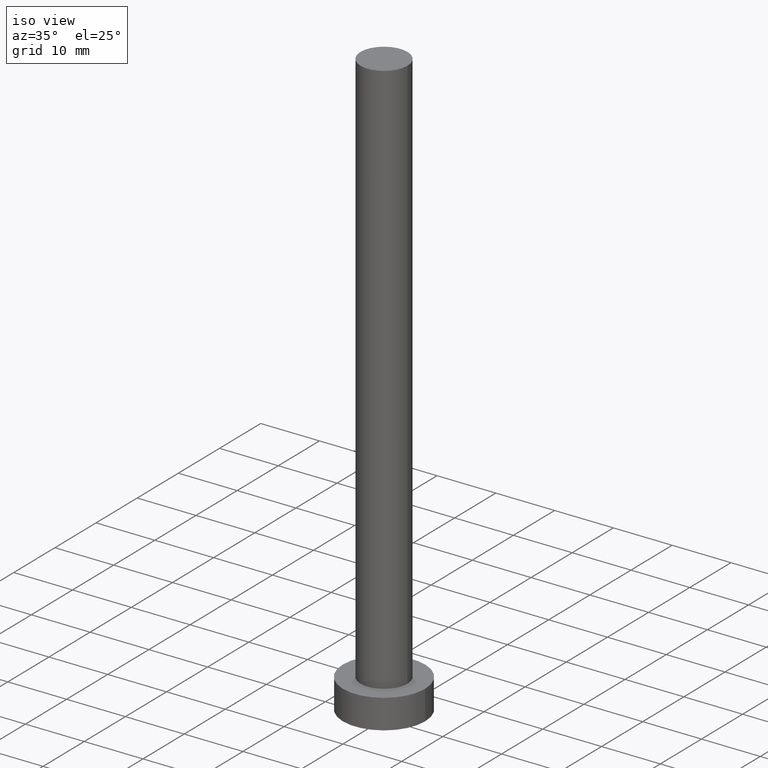
[diagram: clean part render]
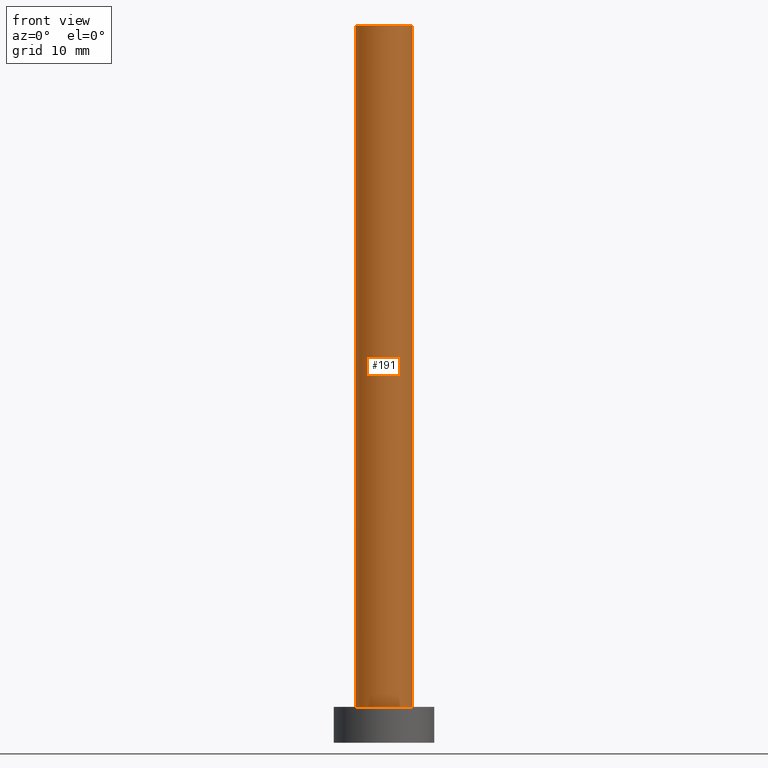
[diagram: tour spotlight — one face highlighted and labeled with its STEP entity id]
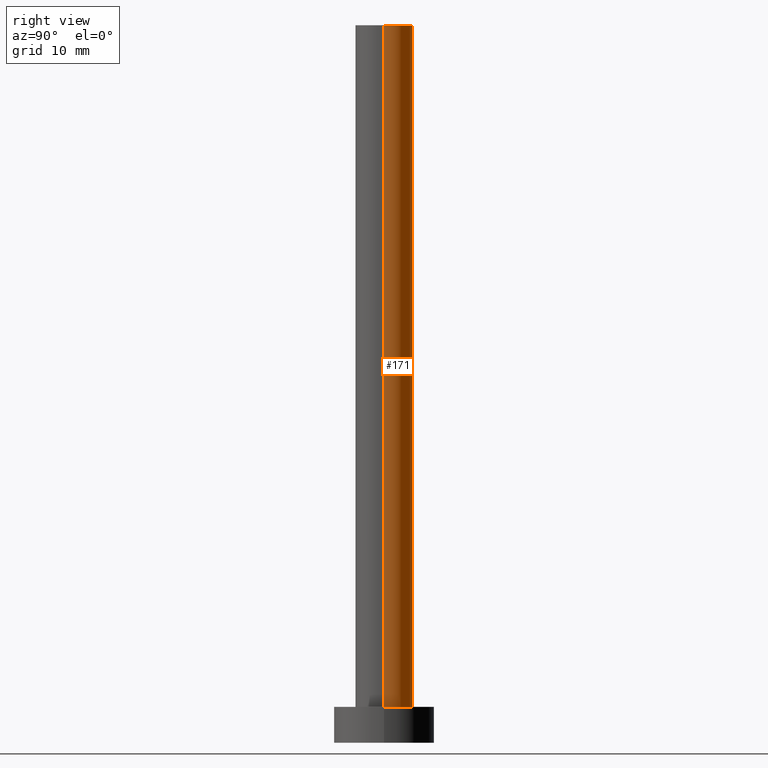
[diagram: tour spotlight — one face highlighted and labeled with its STEP entity id]
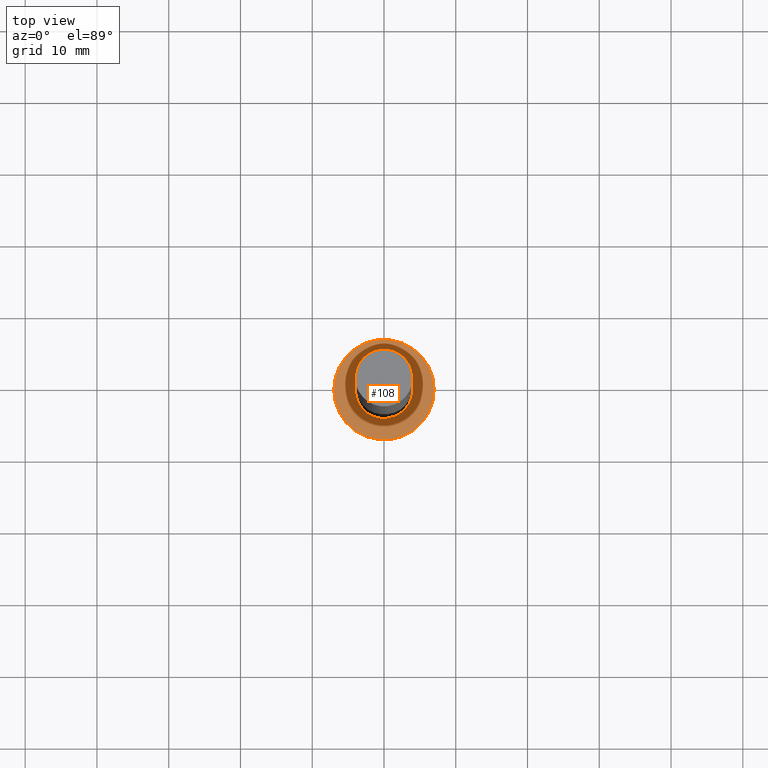
[diagram: tour spotlight — one face highlighted and labeled with its STEP entity id]
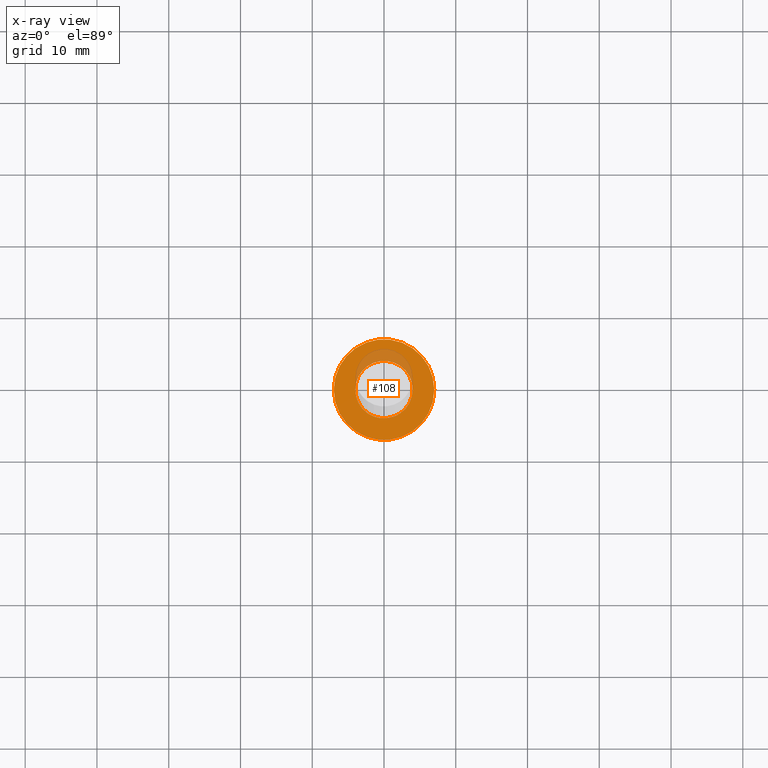
[diagram: x-ray of the same camera — body ghosted, this tour face saturated]
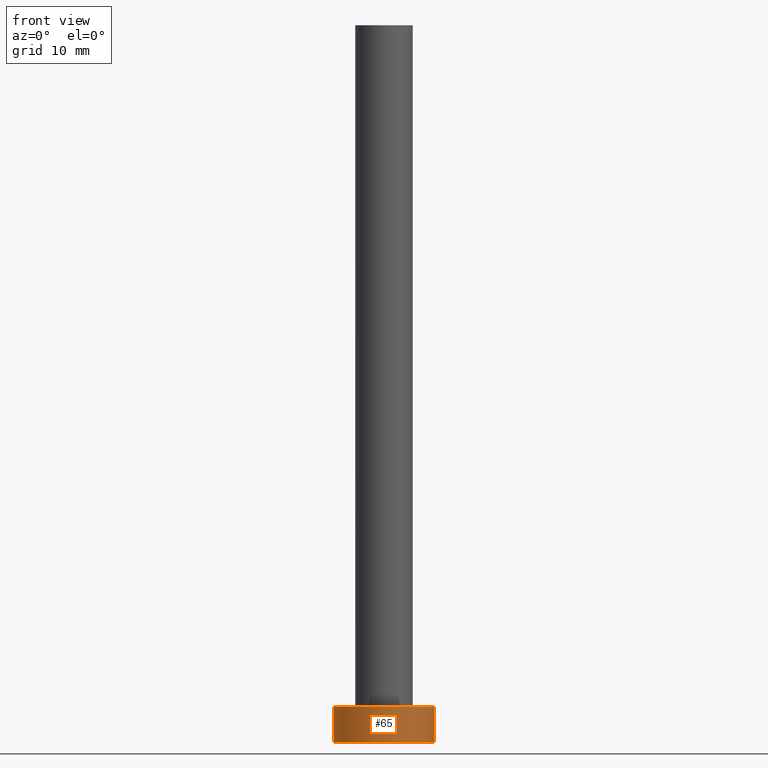
[diagram: tour spotlight — one face highlighted and labeled with its STEP entity id]
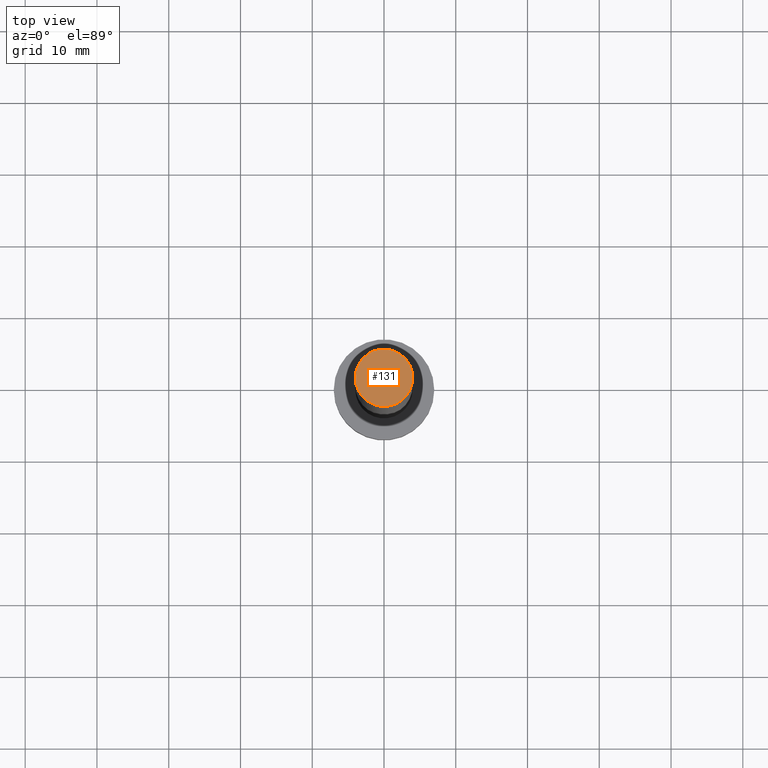
[diagram: tour spotlight — one face highlighted and labeled with its STEP entity id]
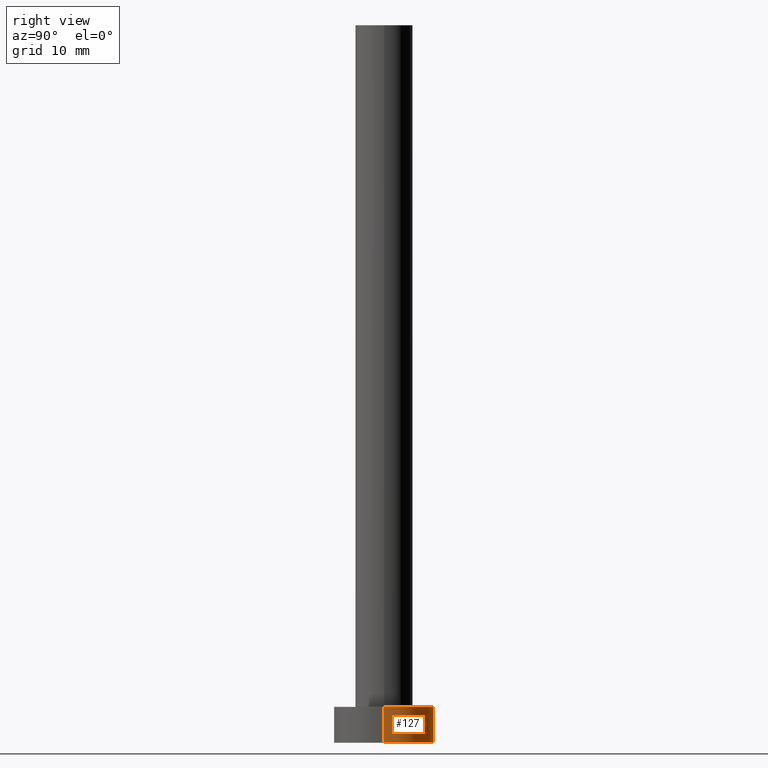
[diagram: tour spotlight — one face highlighted and labeled with its STEP entity id]
A machine part: a face-by-face anatomy tour. The part has 7 B-rep faces; the first image is the clean iso view, then the 6 largest visible faces are spotlighted one at a time (largest first), each with its STEP entity span.

Face 1 — front view, entity #191. In plain terms, the highlighted cylindrical surface (edge-blend (fillet) strip) has radius 4 mm, axis along (-0, -0, -1).
Definition (entity closure, byte-faithful):
#15 = DIRECTION ( 'NONE',  ( -0.000000000000000000, -0.000000000000000000, -1.000000000000000000 ) ) ;
#17 = DIRECTION ( 'NONE',  ( -0.000000000000000000, -0.000000000000000000, -1.000000000000000000 ) ) ;
#40 = CARTESIAN_POINT ( 'NONE',  ( 0.000000000000000000, 0.000000000000000000, 100.0000000000000000 ) ) ;
#46 = CARTESIAN_POINT ( 'NONE',  ( 4.000000000000000000, 4.898587196589412829E-16, 5.000000000000000000 ) ) ;
#53 = EDGE_CURVE ( 'NONE', #232, #150, #186, .T. ) ;
#54 = ORIENTED_EDGE ( 'NONE', *, *, #84, .F. ) ;
#58 = CYLINDRICAL_SURFACE ( 'NONE', #167, 4.000000000000000000 ) ;
#73 = ORIENTED_EDGE ( 'NONE', *, *, #161, .T. ) ;
#77 = EDGE_LOOP ( 'NONE', ( #152, #54, #73, #198 ) ) ;
#84 = EDGE_CURVE ( 'NONE', #213, #232, #230, .T. ) ;
#89 = DIRECTION ( 'NONE',  ( 1.000000000000000000, 0.000000000000000000, 0.000000000000000000 ) ) ;
#96 = EDGE_CURVE ( 'NONE', #115, #150, #221, .T. ) ;
#114 = AXIS2_PLACEMENT_3D ( 'NONE', #210, #243, #89 ) ;
#115 = VERTEX_POINT ( 'NONE', #217 ) ;
#124 = CARTESIAN_POINT ( 'NONE',  ( -4.000000000000000000, 0.000000000000000000, 100.0000000000000000 ) ) ;
#130 = VECTOR ( 'NONE', #15, 1000.000000000000000 ) ;
#143 = DIRECTION ( 'NONE',  ( 0.000000000000000000, 0.000000000000000000, 1.000000000000000000 ) ) ;
#150 = VERTEX_POINT ( 'NONE', #46 ) ;
#152 = ORIENTED_EDGE ( 'NONE', *, *, #53, .F. ) ;
#160 = CARTESIAN_POINT ( 'NONE',  ( 4.000000000000000000, 4.898587196589412829E-16, 100.0000000000000000 ) ) ;
#161 = EDGE_CURVE ( 'NONE', #213, #115, #235, .T. ) ;
#164 = DIRECTION ( 'NONE',  ( -1.000000000000000000, 0.000000000000000000, 0.000000000000000000 ) ) ;
#167 = AXIS2_PLACEMENT_3D ( 'NONE', #40, #190, #164 ) ;
#186 = LINE ( 'NONE', #160, #253 ) ;
#189 = CARTESIAN_POINT ( 'NONE',  ( 0.000000000000000000, 0.000000000000000000, 5.000000000000000000 ) ) ;
#190 = DIRECTION ( 'NONE',  ( -0.000000000000000000, -0.000000000000000000, -1.000000000000000000 ) ) ;
#191 = ADVANCED_FACE ( 'NONE', ( #214 ), #58, .T. ) ;
#196 = AXIS2_PLACEMENT_3D ( 'NONE', #189, #143, #223 ) ;
#198 = ORIENTED_EDGE ( 'NONE', *, *, #96, .T. ) ;
#206 = CARTESIAN_POINT ( 'NONE',  ( 4.000000000000000000, 4.898587196589412829E-16, 100.0000000000000000 ) ) ;
#208 = CARTESIAN_POINT ( 'NONE',  ( -4.000000000000000000, 0.000000000000000000, 100.0000000000000000 ) ) ;
#210 = CARTESIAN_POINT ( 'NONE',  ( 0.000000000000000000, 0.000000000000000000, 100.0000000000000000 ) ) ;
#213 = VERTEX_POINT ( 'NONE', #208 ) ;
#214 = FACE_OUTER_BOUND ( 'NONE', #77, .T. ) ;
#217 = CARTESIAN_POINT ( 'NONE',  ( -4.000000000000000000, 0.000000000000000000, 5.000000000000000000 ) ) ;
#221 = CIRCLE ( 'NONE', #196, 4.000000000000000000 ) ;
#223 = DIRECTION ( 'NONE',  ( 1.000000000000000000, 0.000000000000000000, 0.000000000000000000 ) ) ;
#230 = CIRCLE ( 'NONE', #114, 4.000000000000000000 ) ;
#232 = VERTEX_POINT ( 'NONE', #206 ) ;
#235 = LINE ( 'NONE', #124, #130 ) ;
#243 = DIRECTION ( 'NONE',  ( 0.000000000000000000, 0.000000000000000000, 1.000000000000000000 ) ) ;
#253 = VECTOR ( 'NONE', #17, 1000.000000000000000 ) ;

Face 2 — right view, entity #171. In plain terms, the highlighted cylindrical surface (edge-blend (fillet) strip) has radius 4 mm, axis along (-0, -0, -1).
Definition (entity closure, byte-faithful):
#13 = ORIENTED_EDGE ( 'NONE', *, *, #103, .T. ) ;
#15 = DIRECTION ( 'NONE',  ( -0.000000000000000000, -0.000000000000000000, -1.000000000000000000 ) ) ;
#17 = DIRECTION ( 'NONE',  ( -0.000000000000000000, -0.000000000000000000, -1.000000000000000000 ) ) ;
#35 = ORIENTED_EDGE ( 'NONE', *, *, #161, .F. ) ;
#43 = AXIS2_PLACEMENT_3D ( 'NONE', #68, #225, #47 ) ;
#46 = CARTESIAN_POINT ( 'NONE',  ( 4.000000000000000000, 4.898587196589412829E-16, 5.000000000000000000 ) ) ;
#47 = DIRECTION ( 'NONE',  ( 1.000000000000000000, 0.000000000000000000, 0.000000000000000000 ) ) ;
#53 = EDGE_CURVE ( 'NONE', #232, #150, #186, .T. ) ;
#55 = DIRECTION ( 'NONE',  ( -1.000000000000000000, 0.000000000000000000, 0.000000000000000000 ) ) ;
#68 = CARTESIAN_POINT ( 'NONE',  ( 0.000000000000000000, 0.000000000000000000, 100.0000000000000000 ) ) ;
#74 = EDGE_CURVE ( 'NONE', #232, #213, #199, .T. ) ;
#88 = AXIS2_PLACEMENT_3D ( 'NONE', #153, #97, #55 ) ;
#91 = EDGE_LOOP ( 'NONE', ( #211, #250, #13, #35 ) ) ;
#97 = DIRECTION ( 'NONE',  ( -0.000000000000000000, -0.000000000000000000, -1.000000000000000000 ) ) ;
#101 = DIRECTION ( 'NONE',  ( 1.000000000000000000, 0.000000000000000000, 0.000000000000000000 ) ) ;
#103 = EDGE_CURVE ( 'NONE', #150, #115, #117, .T. ) ;
#105 = DIRECTION ( 'NONE',  ( 0.000000000000000000, 0.000000000000000000, 1.000000000000000000 ) ) ;
#115 = VERTEX_POINT ( 'NONE', #217 ) ;
#117 = CIRCLE ( 'NONE', #248, 4.000000000000000000 ) ;
#124 = CARTESIAN_POINT ( 'NONE',  ( -4.000000000000000000, 0.000000000000000000, 100.0000000000000000 ) ) ;
#130 = VECTOR ( 'NONE', #15, 1000.000000000000000 ) ;
#150 = VERTEX_POINT ( 'NONE', #46 ) ;
#153 = CARTESIAN_POINT ( 'NONE',  ( 0.000000000000000000, 0.000000000000000000, 100.0000000000000000 ) ) ;
#160 = CARTESIAN_POINT ( 'NONE',  ( 4.000000000000000000, 4.898587196589412829E-16, 100.0000000000000000 ) ) ;
#161 = EDGE_CURVE ( 'NONE', #213, #115, #235, .T. ) ;
#171 = ADVANCED_FACE ( 'NONE', ( #201 ), #236, .T. ) ;
#186 = LINE ( 'NONE', #160, #253 ) ;
#199 = CIRCLE ( 'NONE', #43, 4.000000000000000000 ) ;
#201 = FACE_OUTER_BOUND ( 'NONE', #91, .T. ) ;
#206 = CARTESIAN_POINT ( 'NONE',  ( 4.000000000000000000, 4.898587196589412829E-16, 100.0000000000000000 ) ) ;
#208 = CARTESIAN_POINT ( 'NONE',  ( -4.000000000000000000, 0.000000000000000000, 100.0000000000000000 ) ) ;
#211 = ORIENTED_EDGE ( 'NONE', *, *, #74, .F. ) ;
#213 = VERTEX_POINT ( 'NONE', #208 ) ;
#217 = CARTESIAN_POINT ( 'NONE',  ( -4.000000000000000000, 0.000000000000000000, 5.000000000000000000 ) ) ;
#225 = DIRECTION ( 'NONE',  ( 0.000000000000000000, 0.000000000000000000, 1.000000000000000000 ) ) ;
#232 = VERTEX_POINT ( 'NONE', #206 ) ;
#235 = LINE ( 'NONE', #124, #130 ) ;
#236 = CYLINDRICAL_SURFACE ( 'NONE', #88, 4.000000000000000000 ) ;
#240 = CARTESIAN_POINT ( 'NONE',  ( 0.000000000000000000, 0.000000000000000000, 5.000000000000000000 ) ) ;
#248 = AXIS2_PLACEMENT_3D ( 'NONE', #240, #105, #101 ) ;
#250 = ORIENTED_EDGE ( 'NONE', *, *, #53, .T. ) ;
#253 = VECTOR ( 'NONE', #17, 1000.000000000000000 ) ;

Face 3 — top view, entity #108. An x-ray twin of the same camera follows (body ghosted, this face saturated) — the face is partly hidden behind the body. In plain terms, the highlighted planar face has unit normal (0, 0, 1).
Definition (entity closure, byte-faithful):
#3 = CARTESIAN_POINT ( 'NONE',  ( 0.000000000000000000, 0.000000000000000000, 5.000000000000000000 ) ) ;
#38 = DIRECTION ( 'NONE',  ( 0.000000000000000000, 0.000000000000000000, 1.000000000000000000 ) ) ;
#44 = AXIS2_PLACEMENT_3D ( 'NONE', #3, #67, #140 ) ;
#46 = CARTESIAN_POINT ( 'NONE',  ( 4.000000000000000000, 4.898587196589412829E-16, 5.000000000000000000 ) ) ;
#52 = VERTEX_POINT ( 'NONE', #141 ) ;
#61 = CARTESIAN_POINT ( 'NONE',  ( 0.000000000000000000, 0.000000000000000000, 5.000000000000000000 ) ) ;
#67 = DIRECTION ( 'NONE',  ( 0.000000000000000000, 0.000000000000000000, 1.000000000000000000 ) ) ;
#80 = FACE_OUTER_BOUND ( 'NONE', #149, .T. ) ;
#81 = CIRCLE ( 'NONE', #249, 7.000000000000000000 ) ;
#95 = ORIENTED_EDGE ( 'NONE', *, *, #103, .F. ) ;
#96 = EDGE_CURVE ( 'NONE', #115, #150, #221, .T. ) ;
#99 = PLANE ( 'NONE',  #134 ) ;
#101 = DIRECTION ( 'NONE',  ( 1.000000000000000000, 0.000000000000000000, 0.000000000000000000 ) ) ;
#103 = EDGE_CURVE ( 'NONE', #150, #115, #117, .T. ) ;
#105 = DIRECTION ( 'NONE',  ( 0.000000000000000000, 0.000000000000000000, 1.000000000000000000 ) ) ;
#108 = ADVANCED_FACE ( 'NONE', ( #175, #80 ), #99, .T. ) ;
#115 = VERTEX_POINT ( 'NONE', #217 ) ;
#117 = CIRCLE ( 'NONE', #248, 4.000000000000000000 ) ;
#128 = ORIENTED_EDGE ( 'NONE', *, *, #96, .F. ) ;
#129 = EDGE_CURVE ( 'NONE', #173, #52, #81, .T. ) ;
#133 = CARTESIAN_POINT ( 'NONE',  ( -7.000000000000000000, 0.000000000000000000, 5.000000000000000000 ) ) ;
#134 = AXIS2_PLACEMENT_3D ( 'NONE', #61, #38, #183 ) ;
#140 = DIRECTION ( 'NONE',  ( 1.000000000000000000, 0.000000000000000000, 0.000000000000000000 ) ) ;
#141 = CARTESIAN_POINT ( 'NONE',  ( 7.000000000000000000, 8.572527594031473190E-16, 5.000000000000000000 ) ) ;
#143 = DIRECTION ( 'NONE',  ( 0.000000000000000000, 0.000000000000000000, 1.000000000000000000 ) ) ;
#149 = EDGE_LOOP ( 'NONE', ( #228, #195 ) ) ;
#150 = VERTEX_POINT ( 'NONE', #46 ) ;
#151 = EDGE_CURVE ( 'NONE', #52, #173, #200, .T. ) ;
#157 = DIRECTION ( 'NONE',  ( 1.000000000000000000, 0.000000000000000000, 0.000000000000000000 ) ) ;
#173 = VERTEX_POINT ( 'NONE', #133 ) ;
#175 = FACE_BOUND ( 'NONE', #176, .T. ) ;
#176 = EDGE_LOOP ( 'NONE', ( #128, #95 ) ) ;
#183 = DIRECTION ( 'NONE',  ( 1.000000000000000000, 0.000000000000000000, -0.000000000000000000 ) ) ;
#189 = CARTESIAN_POINT ( 'NONE',  ( 0.000000000000000000, 0.000000000000000000, 5.000000000000000000 ) ) ;
#195 = ORIENTED_EDGE ( 'NONE', *, *, #151, .T. ) ;
#196 = AXIS2_PLACEMENT_3D ( 'NONE', #189, #143, #223 ) ;
#200 = CIRCLE ( 'NONE', #44, 7.000000000000000000 ) ;
#204 = DIRECTION ( 'NONE',  ( 0.000000000000000000, 0.000000000000000000, 1.000000000000000000 ) ) ;
#217 = CARTESIAN_POINT ( 'NONE',  ( -4.000000000000000000, 0.000000000000000000, 5.000000000000000000 ) ) ;
#219 = CARTESIAN_POINT ( 'NONE',  ( 0.000000000000000000, 0.000000000000000000, 5.000000000000000000 ) ) ;
#221 = CIRCLE ( 'NONE', #196, 4.000000000000000000 ) ;
#223 = DIRECTION ( 'NONE',  ( 1.000000000000000000, 0.000000000000000000, 0.000000000000000000 ) ) ;
#228 = ORIENTED_EDGE ( 'NONE', *, *, #129, .T. ) ;
#240 = CARTESIAN_POINT ( 'NONE',  ( 0.000000000000000000, 0.000000000000000000, 5.000000000000000000 ) ) ;
#248 = AXIS2_PLACEMENT_3D ( 'NONE', #240, #105, #101 ) ;
#249 = AXIS2_PLACEMENT_3D ( 'NONE', #219, #204, #157 ) ;

Face 4 — front view, entity #65. In plain terms, the highlighted cylindrical surface (partial cylindrical patch) has radius 7 mm, axis along (-0, -0, -1).
Definition (entity closure, byte-faithful):
#11 = EDGE_CURVE ( 'NONE', #52, #242, #56, .T. ) ;
#20 = CARTESIAN_POINT ( 'NONE',  ( 0.000000000000000000, 0.000000000000000000, 5.000000000000000000 ) ) ;
#21 = DIRECTION ( 'NONE',  ( -0.000000000000000000, -0.000000000000000000, -1.000000000000000000 ) ) ;
#24 = CIRCLE ( 'NONE', #251, 7.000000000000000000 ) ;
#25 = CARTESIAN_POINT ( 'NONE',  ( 0.000000000000000000, 0.000000000000000000, 0.000000000000000000 ) ) ;
#27 = VECTOR ( 'NONE', #118, 1000.000000000000000 ) ;
#28 = DIRECTION ( 'NONE',  ( 1.000000000000000000, 0.000000000000000000, 0.000000000000000000 ) ) ;
#31 = ORIENTED_EDGE ( 'NONE', *, *, #244, .T. ) ;
#33 = ORIENTED_EDGE ( 'NONE', *, *, #11, .F. ) ;
#41 = EDGE_CURVE ( 'NONE', #173, #76, #255, .T. ) ;
#52 = VERTEX_POINT ( 'NONE', #141 ) ;
#56 = LINE ( 'NONE', #237, #27 ) ;
#64 = CARTESIAN_POINT ( 'NONE',  ( -7.000000000000000000, 0.000000000000000000, 5.000000000000000000 ) ) ;
#65 = ADVANCED_FACE ( 'NONE', ( #125 ), #122, .T. ) ;
#76 = VERTEX_POINT ( 'NONE', #110 ) ;
#78 = AXIS2_PLACEMENT_3D ( 'NONE', #20, #106, #184 ) ;
#81 = CIRCLE ( 'NONE', #249, 7.000000000000000000 ) ;
#106 = DIRECTION ( 'NONE',  ( -0.000000000000000000, -0.000000000000000000, -1.000000000000000000 ) ) ;
#110 = CARTESIAN_POINT ( 'NONE',  ( -7.000000000000000000, 0.000000000000000000, 0.000000000000000000 ) ) ;
#116 = ORIENTED_EDGE ( 'NONE', *, *, #129, .F. ) ;
#118 = DIRECTION ( 'NONE',  ( -0.000000000000000000, -0.000000000000000000, -1.000000000000000000 ) ) ;
#122 = CYLINDRICAL_SURFACE ( 'NONE', #78, 7.000000000000000000 ) ;
#125 = FACE_OUTER_BOUND ( 'NONE', #197, .T. ) ;
#129 = EDGE_CURVE ( 'NONE', #173, #52, #81, .T. ) ;
#133 = CARTESIAN_POINT ( 'NONE',  ( -7.000000000000000000, 0.000000000000000000, 5.000000000000000000 ) ) ;
#141 = CARTESIAN_POINT ( 'NONE',  ( 7.000000000000000000, 8.572527594031473190E-16, 5.000000000000000000 ) ) ;
#146 = ORIENTED_EDGE ( 'NONE', *, *, #41, .T. ) ;
#157 = DIRECTION ( 'NONE',  ( 1.000000000000000000, 0.000000000000000000, 0.000000000000000000 ) ) ;
#168 = CARTESIAN_POINT ( 'NONE',  ( 7.000000000000000000, 8.572527594031473190E-16, 0.000000000000000000 ) ) ;
#173 = VERTEX_POINT ( 'NONE', #133 ) ;
#184 = DIRECTION ( 'NONE',  ( -1.000000000000000000, 0.000000000000000000, 0.000000000000000000 ) ) ;
#192 = VECTOR ( 'NONE', #21, 1000.000000000000000 ) ;
#197 = EDGE_LOOP ( 'NONE', ( #33, #116, #146, #31 ) ) ;
#204 = DIRECTION ( 'NONE',  ( 0.000000000000000000, 0.000000000000000000, 1.000000000000000000 ) ) ;
#209 = DIRECTION ( 'NONE',  ( 0.000000000000000000, 0.000000000000000000, 1.000000000000000000 ) ) ;
#219 = CARTESIAN_POINT ( 'NONE',  ( 0.000000000000000000, 0.000000000000000000, 5.000000000000000000 ) ) ;
#237 = CARTESIAN_POINT ( 'NONE',  ( 7.000000000000000000, 8.572527594031473190E-16, 5.000000000000000000 ) ) ;
#242 = VERTEX_POINT ( 'NONE', #168 ) ;
#244 = EDGE_CURVE ( 'NONE', #76, #242, #24, .T. ) ;
#249 = AXIS2_PLACEMENT_3D ( 'NONE', #219, #204, #157 ) ;
#251 = AXIS2_PLACEMENT_3D ( 'NONE', #25, #209, #28 ) ;
#255 = LINE ( 'NONE', #64, #192 ) ;

Face 5 — top view, entity #131. In plain terms, the highlighted planar face has unit normal (0, 0, 1).
Definition (entity closure, byte-faithful):
#43 = AXIS2_PLACEMENT_3D ( 'NONE', #68, #225, #47 ) ;
#47 = DIRECTION ( 'NONE',  ( 1.000000000000000000, 0.000000000000000000, 0.000000000000000000 ) ) ;
#51 = ORIENTED_EDGE ( 'NONE', *, *, #84, .T. ) ;
#63 = DIRECTION ( 'NONE',  ( 1.000000000000000000, 0.000000000000000000, -0.000000000000000000 ) ) ;
#68 = CARTESIAN_POINT ( 'NONE',  ( 0.000000000000000000, 0.000000000000000000, 100.0000000000000000 ) ) ;
#74 = EDGE_CURVE ( 'NONE', #232, #213, #199, .T. ) ;
#75 = EDGE_LOOP ( 'NONE', ( #51, #172 ) ) ;
#84 = EDGE_CURVE ( 'NONE', #213, #232, #230, .T. ) ;
#89 = DIRECTION ( 'NONE',  ( 1.000000000000000000, 0.000000000000000000, 0.000000000000000000 ) ) ;
#107 = DIRECTION ( 'NONE',  ( 0.000000000000000000, 0.000000000000000000, 1.000000000000000000 ) ) ;
#114 = AXIS2_PLACEMENT_3D ( 'NONE', #210, #243, #89 ) ;
#119 = PLANE ( 'NONE',  #245 ) ;
#131 = ADVANCED_FACE ( 'NONE', ( #252 ), #119, .T. ) ;
#172 = ORIENTED_EDGE ( 'NONE', *, *, #74, .T. ) ;
#199 = CIRCLE ( 'NONE', #43, 4.000000000000000000 ) ;
#206 = CARTESIAN_POINT ( 'NONE',  ( 4.000000000000000000, 4.898587196589412829E-16, 100.0000000000000000 ) ) ;
#208 = CARTESIAN_POINT ( 'NONE',  ( -4.000000000000000000, 0.000000000000000000, 100.0000000000000000 ) ) ;
#210 = CARTESIAN_POINT ( 'NONE',  ( 0.000000000000000000, 0.000000000000000000, 100.0000000000000000 ) ) ;
#213 = VERTEX_POINT ( 'NONE', #208 ) ;
#225 = DIRECTION ( 'NONE',  ( 0.000000000000000000, 0.000000000000000000, 1.000000000000000000 ) ) ;
#230 = CIRCLE ( 'NONE', #114, 4.000000000000000000 ) ;
#232 = VERTEX_POINT ( 'NONE', #206 ) ;
#239 = CARTESIAN_POINT ( 'NONE',  ( 0.000000000000000000, 0.000000000000000000, 100.0000000000000000 ) ) ;
#243 = DIRECTION ( 'NONE',  ( 0.000000000000000000, 0.000000000000000000, 1.000000000000000000 ) ) ;
#245 = AXIS2_PLACEMENT_3D ( 'NONE', #239, #107, #63 ) ;
#252 = FACE_OUTER_BOUND ( 'NONE', #75, .T. ) ;

Face 6 — right view, entity #127. In plain terms, the highlighted cylindrical surface (partial cylindrical patch) has radius 7 mm, axis along (-0, -0, -1).
Definition (entity closure, byte-faithful):
#2 = FACE_OUTER_BOUND ( 'NONE', #112, .T. ) ;
#3 = CARTESIAN_POINT ( 'NONE',  ( 0.000000000000000000, 0.000000000000000000, 5.000000000000000000 ) ) ;
#8 = AXIS2_PLACEMENT_3D ( 'NONE', #123, #102, #120 ) ;
#11 = EDGE_CURVE ( 'NONE', #52, #242, #56, .T. ) ;
#21 = DIRECTION ( 'NONE',  ( -0.000000000000000000, -0.000000000000000000, -1.000000000000000000 ) ) ;
#27 = VECTOR ( 'NONE', #118, 1000.000000000000000 ) ;
#29 = ORIENTED_EDGE ( 'NONE', *, *, #30, .T. ) ;
#30 = EDGE_CURVE ( 'NONE', #242, #76, #166, .T. ) ;
#41 = EDGE_CURVE ( 'NONE', #173, #76, #255, .T. ) ;
#44 = AXIS2_PLACEMENT_3D ( 'NONE', #3, #67, #140 ) ;
#52 = VERTEX_POINT ( 'NONE', #141 ) ;
#56 = LINE ( 'NONE', #237, #27 ) ;
#64 = CARTESIAN_POINT ( 'NONE',  ( -7.000000000000000000, 0.000000000000000000, 5.000000000000000000 ) ) ;
#67 = DIRECTION ( 'NONE',  ( 0.000000000000000000, 0.000000000000000000, 1.000000000000000000 ) ) ;
#76 = VERTEX_POINT ( 'NONE', #110 ) ;
#79 = ORIENTED_EDGE ( 'NONE', *, *, #41, .F. ) ;
#83 = CYLINDRICAL_SURFACE ( 'NONE', #93, 7.000000000000000000 ) ;
#85 = ORIENTED_EDGE ( 'NONE', *, *, #151, .F. ) ;
#93 = AXIS2_PLACEMENT_3D ( 'NONE', #179, #185, #137 ) ;
#102 = DIRECTION ( 'NONE',  ( 0.000000000000000000, 0.000000000000000000, 1.000000000000000000 ) ) ;
#110 = CARTESIAN_POINT ( 'NONE',  ( -7.000000000000000000, 0.000000000000000000, 0.000000000000000000 ) ) ;
#112 = EDGE_LOOP ( 'NONE', ( #85, #231, #29, #79 ) ) ;
#118 = DIRECTION ( 'NONE',  ( -0.000000000000000000, -0.000000000000000000, -1.000000000000000000 ) ) ;
#120 = DIRECTION ( 'NONE',  ( 1.000000000000000000, 0.000000000000000000, 0.000000000000000000 ) ) ;
#123 = CARTESIAN_POINT ( 'NONE',  ( 0.000000000000000000, 0.000000000000000000, 0.000000000000000000 ) ) ;
#127 = ADVANCED_FACE ( 'NONE', ( #2 ), #83, .T. ) ;
#133 = CARTESIAN_POINT ( 'NONE',  ( -7.000000000000000000, 0.000000000000000000, 5.000000000000000000 ) ) ;
#137 = DIRECTION ( 'NONE',  ( -1.000000000000000000, 0.000000000000000000, 0.000000000000000000 ) ) ;
#140 = DIRECTION ( 'NONE',  ( 1.000000000000000000, 0.000000000000000000, 0.000000000000000000 ) ) ;
#141 = CARTESIAN_POINT ( 'NONE',  ( 7.000000000000000000, 8.572527594031473190E-16, 5.000000000000000000 ) ) ;
#151 = EDGE_CURVE ( 'NONE', #52, #173, #200, .T. ) ;
#166 = CIRCLE ( 'NONE', #8, 7.000000000000000000 ) ;
#168 = CARTESIAN_POINT ( 'NONE',  ( 7.000000000000000000, 8.572527594031473190E-16, 0.000000000000000000 ) ) ;
#173 = VERTEX_POINT ( 'NONE', #133 ) ;
#179 = CARTESIAN_POINT ( 'NONE',  ( 0.000000000000000000, 0.000000000000000000, 5.000000000000000000 ) ) ;
#185 = DIRECTION ( 'NONE',  ( -0.000000000000000000, -0.000000000000000000, -1.000000000000000000 ) ) ;
#192 = VECTOR ( 'NONE', #21, 1000.000000000000000 ) ;
#200 = CIRCLE ( 'NONE', #44, 7.000000000000000000 ) ;
#231 = ORIENTED_EDGE ( 'NONE', *, *, #11, .T. ) ;
#237 = CARTESIAN_POINT ( 'NONE',  ( 7.000000000000000000, 8.572527594031473190E-16, 5.000000000000000000 ) ) ;
#242 = VERTEX_POINT ( 'NONE', #168 ) ;
#255 = LINE ( 'NONE', #64, #192 ) ;